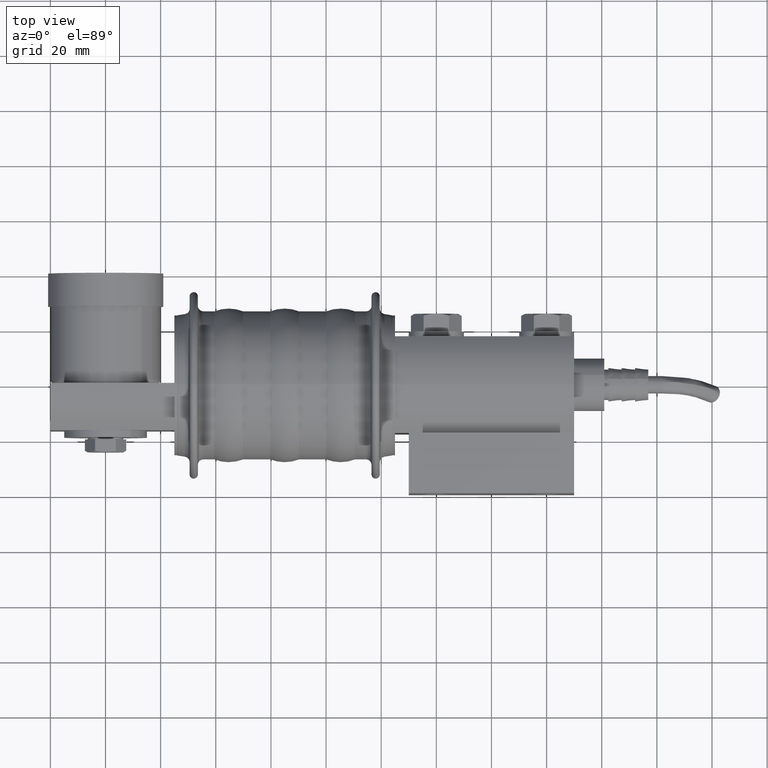
[diagram: clean part render]
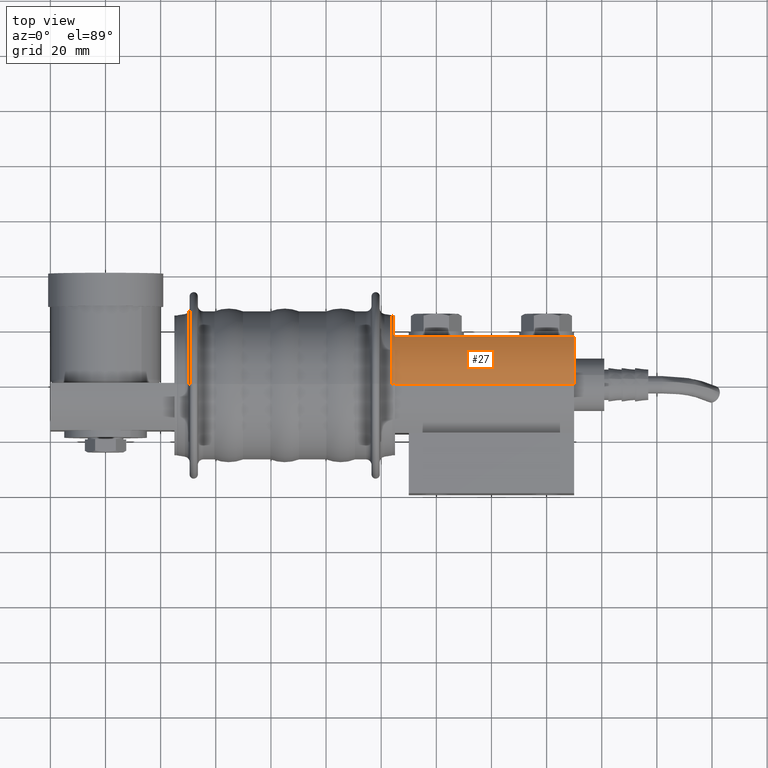
[diagram: same view with one face highlighted and labeled with its STEP entity id]
A machine part, top view. The second image highlights one B-rep face of the part: STEP entity #27.
In plain terms, the highlighted cylindrical surface (partial cylindrical patch) has radius 25 mm, axis along (-1, 0, 0).
Its self-contained STEP definition (entity closure, byte-faithful):
#27 = ADVANCED_FACE ( 'NONE', ( #3830 ), #6424, .T. ) ;
#202 = ORIENTED_EDGE ( 'NONE', *, *, #5916, .F. ) ;
#320 = LINE ( 'NONE', #990, #2486 ) ;
#470 = VERTEX_POINT ( 'NONE', #2007 ) ;
#742 = AXIS2_PLACEMENT_3D ( 'NONE', #2374, #2837, #4508 ) ;
#749 = DIRECTION ( 'NONE',  ( -1.000000000000000000, 0.0000000000000000000, 0.0000000000000000000 ) ) ;
#963 = CIRCLE ( 'NONE', #5929, 25.00000000000000000 ) ;
#990 = CARTESIAN_POINT ( 'NONE',  ( -65.00000000000000000, 0.0000000000000000000, -25.00000000000000000 ) ) ;
#1039 = DIRECTION ( 'NONE',  ( 1.000000000000000000, 0.0000000000000000000, 0.0000000000000000000 ) ) ;
#1228 = DIRECTION ( 'NONE',  ( 0.0000000000000000000, 0.0000000000000000000, 1.000000000000000000 ) ) ;
#1621 = EDGE_CURVE ( 'NONE', #3066, #470, #1723, .T. ) ;
#1723 = CIRCLE ( 'NONE', #3775, 25.00000000000000000 ) ;
#1806 = EDGE_CURVE ( 'NONE', #2292, #3439, #963, .T. ) ;
#1820 = VECTOR ( 'NONE', #3854, 1000.000000000000000 ) ;
#1857 = ORIENTED_EDGE ( 'NONE', *, *, #4645, .T. ) ;
#1997 = LINE ( 'NONE', #4934, #1820 ) ;
#2007 = CARTESIAN_POINT ( 'NONE',  ( 0.0000000000000000000, 0.0000000000000000000, -25.00000000000000000 ) ) ;
#2040 = CARTESIAN_POINT ( 'NONE',  ( -65.00000000000000000, 0.0000000000000000000, -25.00000000000000000 ) ) ;
#2103 = ORIENTED_EDGE ( 'NONE', *, *, #1621, .T. ) ;
#2292 = VERTEX_POINT ( 'NONE', #6140 ) ;
#2299 = CARTESIAN_POINT ( 'NONE',  ( 0.0000000000000000000, 0.0000000000000000000, 0.0000000000000000000 ) ) ;
#2374 = CARTESIAN_POINT ( 'NONE',  ( -65.00000000000000000, 0.0000000000000000000, 0.0000000000000000000 ) ) ;
#2430 = EDGE_LOOP ( 'NONE', ( #202, #3733, #1857, #2103 ) ) ;
#2486 = VECTOR ( 'NONE', #1039, 1000.000000000000000 ) ;
#2837 = DIRECTION ( 'NONE',  ( 1.000000000000000000, 0.0000000000000000000, 0.0000000000000000000 ) ) ;
#3066 = VERTEX_POINT ( 'NONE', #5982 ) ;
#3439 = VERTEX_POINT ( 'NONE', #2040 ) ;
#3562 = DIRECTION ( 'NONE',  ( 0.0000000000000000000, 0.0000000000000000000, 1.000000000000000000 ) ) ;
#3733 = ORIENTED_EDGE ( 'NONE', *, *, #1806, .F. ) ;
#3775 = AXIS2_PLACEMENT_3D ( 'NONE', #2299, #749, #1228 ) ;
#3830 = FACE_OUTER_BOUND ( 'NONE', #2430, .T. ) ;
#3854 = DIRECTION ( 'NONE',  ( 1.000000000000000000, 0.0000000000000000000, 0.0000000000000000000 ) ) ;
#4508 = DIRECTION ( 'NONE',  ( 0.0000000000000000000, 0.0000000000000000000, -1.000000000000000000 ) ) ;
#4645 = EDGE_CURVE ( 'NONE', #2292, #3066, #1997, .T. ) ;
#4934 = CARTESIAN_POINT ( 'NONE',  ( -65.00000000000000000, 17.50000000000000400, -17.85357107135712700 ) ) ;
#5206 = CARTESIAN_POINT ( 'NONE',  ( -65.00000000000000000, 0.0000000000000000000, 0.0000000000000000000 ) ) ;
#5726 = DIRECTION ( 'NONE',  ( -1.000000000000000000, 0.0000000000000000000, 0.0000000000000000000 ) ) ;
#5916 = EDGE_CURVE ( 'NONE', #3439, #470, #320, .T. ) ;
#5929 = AXIS2_PLACEMENT_3D ( 'NONE', #5206, #5726, #3562 ) ;
#5982 = CARTESIAN_POINT ( 'NONE',  ( 0.0000000000000000000, 17.50000000000000400, -17.85357107135712700 ) ) ;
#6140 = CARTESIAN_POINT ( 'NONE',  ( -65.00000000000000000, 17.50000000000000400, -17.85357107135712700 ) ) ;
#6424 = CYLINDRICAL_SURFACE ( 'NONE', #742, 25.00000000000000000 ) ;